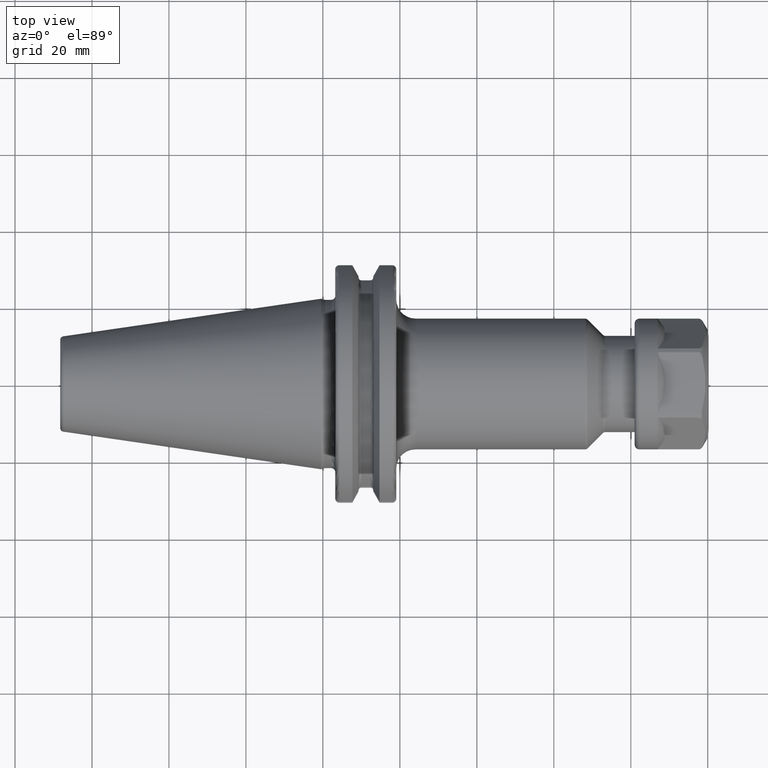
[diagram: clean part render]
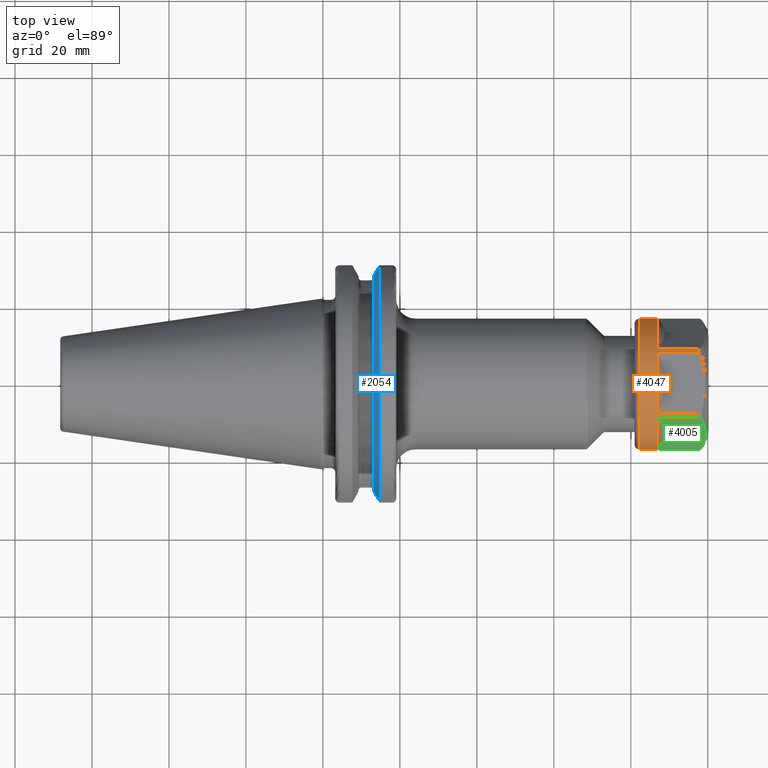
[diagram: same view with three faces highlighted in distinct colors, each labeled with its STEP entity id]
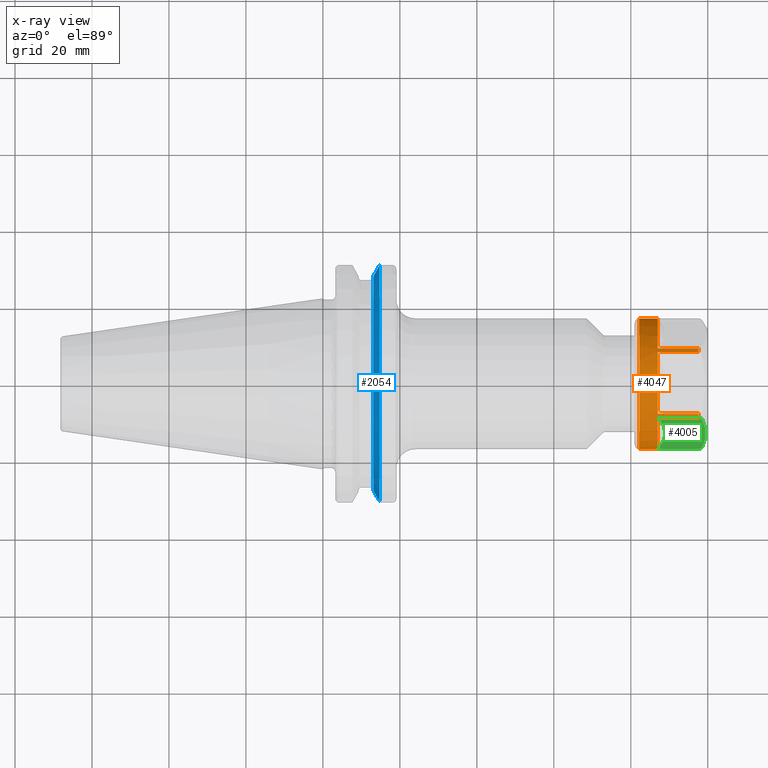
[diagram: x-ray of the same camera — body ghosted, the three highlighted faces saturated]
A machine part, top view with three faces highlighted in distinct colors.
The next image is the same camera in x-ray (body ghosted, the three faces saturated) — at least one of them is partly hidden behind the body in this view.
Their STEP definitions:

[orange] entity #4047 — the highlighted cylindrical surface (partial cylindrical patch) has radius 17 mm, axis along (1, 0, 0).
#3260=DIRECTION('',(-1.E0,0.E0,4.859249806958E-11));
#3261=VECTOR('',#3260,1.529626135594E1);
#3262=CARTESIAN_POINT('',(1.654626135594E1,1.7E1,-1.152775558652E-10));
#3263=LINE('',#3262,#3261);
#3269=DIRECTION('',(-1.E0,0.E0,-4.859253938540E-11));
#3270=VECTOR('',#3269,1.529626135594E1);
#3271=CARTESIAN_POINT('',(1.654626135594E1,-1.7E1,1.152775494066E-10));
#3272=LINE('',#3271,#3270);
#3336=CARTESIAN_POINT('',(1.654626135594E1,-1.699038105677E1,
5.717967697245E-1));
#3338=CARTESIAN_POINT('',(1.654626135594E1,-8.990381056767E0,1.442820323028E1));
#3356=CARTESIAN_POINT('',(1.654626135594E1,-8.E0,1.5E1));
#3358=CARTESIAN_POINT('',(1.654626135594E1,8.E0,1.5E1));
#3376=CARTESIAN_POINT('',(1.654626135594E1,8.990381056767E0,1.442820323028E1));
#3388=CARTESIAN_POINT('',(1.654626135594E1,1.699038105677E1,5.717967697245E-1));
#3530=DIRECTION('',(9.999999992374E-1,-3.427788888926E-5,1.871268806668E-5));
#3531=VECTOR('',#3530,1.053590077871E1);
#3532=CARTESIAN_POINT('',(6.010360585267E0,-8.990019908330E0,1.442800607525E1));
#3533=LINE('',#3532,#3531);
#3534=DIRECTION('',(-1.E0,0.E0,0.E0));
#3535=VECTOR('',#3534,1.053616719791E1);
#3536=CARTESIAN_POINT('',(1.654626135594E1,-1.699038105677E1,
5.717967697245E-1));
#3537=LINE('',#3536,#3535);
#3538=CARTESIAN_POINT('',(6.010022197914E0,7.337104015724E-4,
-4.120040762721E-4));
#3539=DIRECTION('',(-1.E0,0.E0,0.E0));
#3540=DIRECTION('',(0.E0,-9.994334137081E-1,3.365786035761E-2));
#3541=AXIS2_PLACEMENT_3D('',#3538,#3539,#3540);
#3543=CARTESIAN_POINT('',(1.654626135594E1,0.E0,0.E0));
#3544=DIRECTION('',(-1.E0,0.E0,0.E0));
#3545=DIRECTION('',(0.E0,4.705882352941E-1,8.823529411765E-1));
#3546=AXIS2_PLACEMENT_3D('',#3543,#3544,#3545);
#3548=CARTESIAN_POINT('',(1.654626135594E1,0.E0,0.E0));
#3549=DIRECTION('',(-1.E0,0.E0,0.E0));
#3550=DIRECTION('',(0.E0,-5.288459445157E-1,8.487178370750E-1));
#3551=AXIS2_PLACEMENT_3D('',#3548,#3549,#3550);
#3553=CARTESIAN_POINT('',(1.654626135594E1,0.E0,0.E0));
#3554=DIRECTION('',(-1.E0,0.E0,0.E0));
#3555=DIRECTION('',(0.E0,-1.E0,0.E0));
#3556=AXIS2_PLACEMENT_3D('',#3553,#3554,#3555);
#3558=CARTESIAN_POINT('',(1.25E0,0.E0,0.E0));
#3559=DIRECTION('',(-1.E0,0.E0,0.E0));
#3560=DIRECTION('',(0.E0,-1.E0,0.E0));
#3561=AXIS2_PLACEMENT_3D('',#3558,#3559,#3560);
#3563=CARTESIAN_POINT('',(1.654626135594E1,0.E0,0.E0));
#3564=DIRECTION('',(-1.E0,0.E0,0.E0));
#3565=DIRECTION('',(0.E0,9.994341798098E-1,3.363510410144E-2));
#3566=AXIS2_PLACEMENT_3D('',#3563,#3564,#3565);
#3568=CARTESIAN_POINT('',(6.009993566245E0,2.034304302246E-4,
1.276242097576E-4));
#3569=DIRECTION('',(-1.E0,0.E0,0.E0));
#3570=DIRECTION('',(0.E0,5.288406942959E-1,8.487211085255E-1));
#3571=AXIS2_PLACEMENT_3D('',#3568,#3569,#3570);
#3591=DIRECTION('',(9.999999998846E-1,-1.315636510517E-5,-7.598885784195E-6));
#3592=VECTOR('',#3591,1.053639725432E1);
#3593=CARTESIAN_POINT('',(6.009864102845E0,1.699051967746E1,5.718768346038E-1));
#3594=LINE('',#3593,#3592);
#3595=DIRECTION('',(-1.E0,0.E0,0.E0));
#3596=VECTOR('',#3595,1.053628552473E1);
#3597=CARTESIAN_POINT('',(1.654626135594E1,8.990381056767E0,1.442820323028E1));
#3598=LINE('',#3597,#3596);
#3617=DIRECTION('',(1.E0,5.660973854209E-8,-2.603250325831E-7));
#3618=VECTOR('',#3617,1.053619155997E1);
#3619=CARTESIAN_POINT('',(6.010069795972E0,7.999999403549E0,1.500000274283E1));
#3620=LINE('',#3619,#3618);
#3621=DIRECTION('',(-1.E0,0.E0,0.E0));
#3622=VECTOR('',#3621,1.053618977066E1);
#3623=CARTESIAN_POINT('',(1.654626135594E1,-8.E0,1.5E1));
#3624=LINE('',#3623,#3622);
#3625=CARTESIAN_POINT('',(6.010015861223E0,-7.568525554981E-7,
-6.073012240115E-4));
#3626=DIRECTION('',(-1.E0,0.E0,0.E0));
#3627=DIRECTION('',(0.E0,-4.705733677049E-1,8.823608703965E-1));
#3628=AXIS2_PLACEMENT_3D('',#3625,#3626,#3627);
#3658=CARTESIAN_POINT('',(1.25E0,1.7E1,0.E0));
#3659=CARTESIAN_POINT('',(1.25E0,-1.7E1,0.E0));
#3660=VERTEX_POINT('',#3658);
#3661=VERTEX_POINT('',#3659);
#3666=CARTESIAN_POINT('',(1.654626135594E1,1.7E1,-1.152775558652E-10));
#3667=VERTEX_POINT('',#3666);
#3668=CARTESIAN_POINT('',(1.654626135594E1,-1.7E1,1.152775494066E-10));
#3669=VERTEX_POINT('',#3668);
#3682=VERTEX_POINT('',#3336);
#3683=VERTEX_POINT('',#3338);
#3684=VERTEX_POINT('',#3356);
#3685=VERTEX_POINT('',#3358);
#3686=VERTEX_POINT('',#3376);
#3687=VERTEX_POINT('',#3388);
#3694=CARTESIAN_POINT('',(6.010022197914E0,-1.699045297670E1,
5.717991917679E-1));
#3695=CARTESIAN_POINT('',(6.010022197914E0,-8.990424116186E0,1.442827233047E1));
#3696=VERTEX_POINT('',#3694);
#3697=VERTEX_POINT('',#3695);
#3710=CARTESIAN_POINT('',(6.009993566245E0,8.990371677756E0,1.442818817817E1));
#3711=CARTESIAN_POINT('',(6.009993566245E0,1.699035504402E1,5.717958944728E-1));
#3712=VERTEX_POINT('',#3710);
#3713=VERTEX_POINT('',#3711);
#3714=CARTESIAN_POINT('',(6.010015861223E0,-8.000026222655E0,1.500004916947E1));
#3715=CARTESIAN_POINT('',(6.010015861223E0,8.000025887465E0,1.500004854096E1));
#3716=VERTEX_POINT('',#3714);
#3717=VERTEX_POINT('',#3715);
#4017=CARTESIAN_POINT('',(-9.5E-1,0.E0,0.E0));
#4018=DIRECTION('',(1.E0,0.E0,0.E0));
#4019=DIRECTION('',(0.E0,-1.E0,0.E0));
#4020=AXIS2_PLACEMENT_3D('',#4017,#4018,#4019);
#4021=CYLINDRICAL_SURFACE('',#4020,1.7E1);
#4023=ORIENTED_EDGE('',*,*,#4022,.F.);
#4025=ORIENTED_EDGE('',*,*,#4024,.F.);
#4026=ORIENTED_EDGE('',*,*,#3891,.F.);
#4028=ORIENTED_EDGE('',*,*,#4027,.F.);
#4030=ORIENTED_EDGE('',*,*,#4029,.F.);
#4032=ORIENTED_EDGE('',*,*,#4031,.F.);
#4033=ORIENTED_EDGE('',*,*,#3875,.F.);
#4034=ORIENTED_EDGE('',*,*,#3996,.F.);
#4035=ORIENTED_EDGE('',*,*,#4011,.F.);
#4036=ORIENTED_EDGE('',*,*,#4001,.F.);
#4037=ORIENTED_EDGE('',*,*,#3861,.F.);
#4038=ORIENTED_EDGE('',*,*,#3816,.T.);
#4040=ORIENTED_EDGE('',*,*,#4039,.T.);
#4041=ORIENTED_EDGE('',*,*,#3812,.F.);
#4042=ORIENTED_EDGE('',*,*,#3905,.F.);
#4044=ORIENTED_EDGE('',*,*,#4043,.F.);
#4045=EDGE_LOOP('',(#4023,#4025,#4026,#4028,#4030,#4032,#4033,#4034,#4035,#4036,
#4037,#4038,#4040,#4041,#4042,#4044));
#4046=FACE_OUTER_BOUND('',#4045,.F.);
#4047=ADVANCED_FACE('',(#4046),#4021,.T.);
#3542=CIRCLE('',#3541,1.700081911817E1);
#3547=CIRCLE('',#3546,1.7E1);
#3552=CIRCLE('',#3551,1.7E1);
#3557=CIRCLE('',#3556,1.7E1);
#3562=CIRCLE('',#3561,1.7E1);
#3567=CIRCLE('',#3566,1.7E1);
#3572=CIRCLE('',#3571,1.699976636499E1);
#3629=CIRCLE('',#3628,1.700059122517E1);
#3812=EDGE_CURVE('',#3667,#3660,#3263,.T.);
#3816=EDGE_CURVE('',#3669,#3661,#3272,.T.);
#3861=EDGE_CURVE('',#3669,#3682,#3557,.T.);
#3875=EDGE_CURVE('',#3683,#3684,#3552,.T.);
#3891=EDGE_CURVE('',#3685,#3686,#3547,.T.);
#3905=EDGE_CURVE('',#3687,#3667,#3567,.T.);
#3996=EDGE_CURVE('',#3697,#3683,#3533,.T.);
#4001=EDGE_CURVE('',#3682,#3696,#3537,.T.);
#4011=EDGE_CURVE('',#3696,#3697,#3542,.T.);
#4022=EDGE_CURVE('',#3712,#3713,#3572,.T.);
#4024=EDGE_CURVE('',#3686,#3712,#3598,.T.);
#4027=EDGE_CURVE('',#3717,#3685,#3620,.T.);
#4029=EDGE_CURVE('',#3716,#3717,#3629,.T.);
#4031=EDGE_CURVE('',#3684,#3716,#3624,.T.);
#4039=EDGE_CURVE('',#3661,#3660,#3562,.T.);
#4043=EDGE_CURVE('',#3713,#3687,#3594,.T.);

[blue] entity #2054 — the highlighted conical surface has half-angle 60 deg.
#393=CARTESIAN_POINT('',(1.470405352042E1,3.071231684927E1,8.1E0));
#394=CARTESIAN_POINT('',(1.451824513517E1,3.037948258059E1,8.1E0));
#395=CARTESIAN_POINT('',(1.415074718503E1,2.972048825911E1,8.1E0));
#396=CARTESIAN_POINT('',(1.361195207986E1,2.875212438619E1,8.1E0));
#397=CARTESIAN_POINT('',(1.326094199325E1,2.811971443922E1,8.1E0));
#398=CARTESIAN_POINT('',(1.30875E1,2.780681820245E1,8.1E0));
#400=CARTESIAN_POINT('',(1.30875E1,-2.780681820245E1,8.1E0));
#401=CARTESIAN_POINT('',(1.326086175289E1,-2.811956968242E1,8.1E0));
#402=CARTESIAN_POINT('',(1.361176448515E1,-2.875178670793E1,8.1E0));
#403=CARTESIAN_POINT('',(1.415055493375E1,-2.972014324708E1,8.1E0));
#404=CARTESIAN_POINT('',(1.451816260441E1,-3.037933474515E1,8.1E0));
#405=CARTESIAN_POINT('',(1.470405352042E1,-3.071231684927E1,8.1E0));
#407=CARTESIAN_POINT('',(1.30875E1,0.E0,0.E0));
#408=DIRECTION('',(1.E0,0.E0,0.E0));
#409=DIRECTION('',(0.E0,9.600957415706E-1,2.796715341576E-1));
#410=AXIS2_PLACEMENT_3D('',#407,#408,#409);
#438=CARTESIAN_POINT('',(1.470405352042E1,0.E0,0.E0));
#439=DIRECTION('',(1.E0,0.E0,0.E0));
#440=DIRECTION('',(0.E0,9.669363825036E-1,2.550177095632E-1));
#441=AXIS2_PLACEMENT_3D('',#438,#439,#440);
#1368=CARTESIAN_POINT('',(1.30875E1,2.780681820245E1,8.1E0));
#1369=VERTEX_POINT('',#1368);
#1378=CARTESIAN_POINT('',(1.30875E1,-2.780681820245E1,8.1E0));
#1379=VERTEX_POINT('',#1378);
#1388=VERTEX_POINT('',#393);
#1389=VERTEX_POINT('',#405);
#2042=CARTESIAN_POINT('',(1.389577676021E1,0.E0,0.E0));
#2043=DIRECTION('',(1.E0,0.E0,0.E0));
#2044=DIRECTION('',(0.E0,-1.E0,0.E0));
#2045=AXIS2_PLACEMENT_3D('',#2042,#2043,#2044);
#2046=CONICAL_SURFACE('',#2045,3.036252358474E1,6.E1);
#2047=ORIENTED_EDGE('',*,*,#1900,.F.);
#2049=ORIENTED_EDGE('',*,*,#2048,.T.);
#2050=ORIENTED_EDGE('',*,*,#1941,.F.);
#2051=ORIENTED_EDGE('',*,*,#2005,.F.);
#2052=EDGE_LOOP('',(#2047,#2049,#2050,#2051));
#2053=FACE_OUTER_BOUND('',#2052,.F.);
#2054=ADVANCED_FACE('',(#2053),#2046,.T.);
#399=B_SPLINE_CURVE_WITH_KNOTS('',3,(#393,#394,#395,#396,#397,#398),
.UNSPECIFIED.,.F.,.F.,(4,1,1,4),(0.E0,3.333333333333E-1,6.666666666667E-1,1.E0),
.UNSPECIFIED.);
#406=B_SPLINE_CURVE_WITH_KNOTS('',3,(#400,#401,#402,#403,#404,#405),
.UNSPECIFIED.,.F.,.F.,(4,1,1,4),(0.E0,3.333333333333E-1,6.666666666667E-1,1.E0),
.UNSPECIFIED.);
#411=CIRCLE('',#410,2.896254716948E1);
#442=CIRCLE('',#441,3.17625E1);
#1900=EDGE_CURVE('',#1388,#1369,#399,.T.);
#1941=EDGE_CURVE('',#1379,#1389,#406,.T.);
#2005=EDGE_CURVE('',#1369,#1379,#411,.T.);
#2048=EDGE_CURVE('',#1388,#1389,#442,.T.);

[green] entity #4005 — the highlighted planar face has unit normal (0, 0.866, -0.5).
#3328=CARTESIAN_POINT('',(1.762879311067E1,-1.627445722062E1,1.811813228277E0));
#3329=CARTESIAN_POINT('',(1.760135930288E1,-1.633368900493E1,1.709220768439E0));
#3330=CARTESIAN_POINT('',(1.753829156841E1,-1.645016226804E1,1.507483158997E0));
#3331=CARTESIAN_POINT('',(1.740404374214E1,-1.662460489838E1,1.205339660241E0));
#3332=CARTESIAN_POINT('',(1.723276370862E1,-1.677685693130E1,
9.416314036774E-1));
#3333=CARTESIAN_POINT('',(1.702726259196E1,-1.689631751599E1,
7.347196014845E-1));
#3334=CARTESIAN_POINT('',(1.679442486846E1,-1.697258284358E1,
6.026241792443E-1));
#3335=CARTESIAN_POINT('',(1.663092243804E1,-1.699038105677E1,
5.717967697245E-1));
#3336=CARTESIAN_POINT('',(1.654626135594E1,-1.699038105677E1,
5.717967697245E-1));
#3338=CARTESIAN_POINT('',(1.654626135594E1,-8.990381056767E0,1.442820323028E1));
#3339=CARTESIAN_POINT('',(1.663133375969E1,-8.990381056767E0,1.442820323028E1));
#3340=CARTESIAN_POINT('',(1.679554974256E1,-9.008319998068E0,1.439713207251E1));
#3341=CARTESIAN_POINT('',(1.702967586056E1,-9.085449864247E0,1.426353922550E1));
#3342=CARTESIAN_POINT('',(1.723504960512E1,-9.205598196371E0,1.405543620982E1));
#3343=CARTESIAN_POINT('',(1.740538646210E1,-9.357706797040E0,1.379197638519E1));
#3344=CARTESIAN_POINT('',(1.753869894456E1,-9.531335419002E0,1.349124279031E1));
#3345=CARTESIAN_POINT('',(1.760147975856E1,-9.647333182045E0,1.329032877115E1));
#3346=CARTESIAN_POINT('',(1.762879311067E1,-9.706304892912E0,1.318818677172E1));
#3460=CARTESIAN_POINT('',(1.762879311067E1,-9.706304892912E0,1.318818677172E1));
#3461=CARTESIAN_POINT('',(1.783518476881E1,-1.015192098345E1,1.241635706224E1));
#3462=CARTESIAN_POINT('',(1.817379271881E1,-1.103673598687E1,1.088381252102E1));
#3463=CARTESIAN_POINT('',(1.843326934202E1,-1.233775072113E1,8.630388899882E0));
#3464=CARTESIAN_POINT('',(1.843317407038E1,-1.364378086319E1,6.368278337620E0));
#3465=CARTESIAN_POINT('',(1.817365600931E1,-1.494440287302E1,4.115534935150E0));
#3466=CARTESIAN_POINT('',(1.783512110256E1,-1.582897859061E1,2.583404849145E0));
#3467=CARTESIAN_POINT('',(1.762879311067E1,-1.627445722062E1,1.811813228277E0));
#3512=CARTESIAN_POINT('',(6.010094158031E0,-1.699038105677E1,
5.717967697245E-1));
#3513=CARTESIAN_POINT('',(6.248860555610E0,-1.673667885002E1,1.011221881794E0));
#3514=CARTESIAN_POINT('',(6.673359230126E0,-1.624777384717E1,1.858030186861E0));
#3515=CARTESIAN_POINT('',(7.159540054751E0,-1.557555148035E1,3.022353479931E0));
#3516=CARTESIAN_POINT('',(7.516204356980E0,-1.495849455715E1,4.091127423007E0));
#3517=CARTESIAN_POINT('',(7.761855355127E0,-1.439387284035E1,5.069080920115E0));
#3518=CARTESIAN_POINT('',(7.915629503835E0,-1.387929474987E1,5.960356330146E0));
#3519=CARTESIAN_POINT('',(7.995386678839E0,-1.340806650550E1,6.776547543349E0));
#3520=CARTESIAN_POINT('',(8.017308964701E0,-1.298987968061E1,7.500868550285E0));
#3521=CARTESIAN_POINT('',(7.995278378694E0,-1.257168644043E1,8.225199820986E0));
#3522=CARTESIAN_POINT('',(7.915368412529E0,-1.210033937944E1,9.041599374128E0));
#3523=CARTESIAN_POINT('',(7.761438829086E0,-1.158574052652E1,9.932901419567E0));
#3524=CARTESIAN_POINT('',(7.515627757615E0,-1.102116525029E1,1.091080924048E1));
#3525=CARTESIAN_POINT('',(7.158946891423E0,-1.040420428591E1,1.197928725927E1));
#3526=CARTESIAN_POINT('',(6.672584733473E0,-9.732360887253E0,1.314343827394E1));
#3527=CARTESIAN_POINT('',(6.248870550518E0,-9.243433178603E0,1.398908141583E1));
#3528=CARTESIAN_POINT('',(6.010360585267E0,-8.990019908330E0,1.442800607525E1));
#3530=DIRECTION('',(9.999999992374E-1,-3.427788888926E-5,1.871268806668E-5));
#3531=VECTOR('',#3530,1.053590077871E1);
#3532=CARTESIAN_POINT('',(6.010360585267E0,-8.990019908330E0,1.442800607525E1));
#3533=LINE('',#3532,#3531);
#3534=DIRECTION('',(-1.E0,0.E0,0.E0));
#3535=VECTOR('',#3534,1.053616719791E1);
#3536=CARTESIAN_POINT('',(1.654626135594E1,-1.699038105677E1,
5.717967697245E-1));
#3537=LINE('',#3536,#3535);
#3670=VERTEX_POINT('',#3460);
#3671=VERTEX_POINT('',#3467);
#3682=VERTEX_POINT('',#3336);
#3683=VERTEX_POINT('',#3338);
#3694=CARTESIAN_POINT('',(6.010022197914E0,-1.699045297670E1,
5.717991917679E-1));
#3695=CARTESIAN_POINT('',(6.010022197914E0,-8.990424116186E0,1.442827233047E1));
#3696=VERTEX_POINT('',#3694);
#3697=VERTEX_POINT('',#3695);
#3989=CARTESIAN_POINT('',(1.9E1,-1.732050807569E1,0.E0));
#3990=DIRECTION('',(0.E0,8.660254037844E-1,-5.E-1));
#3991=DIRECTION('',(0.E0,5.E-1,8.660254037844E-1));
#3992=AXIS2_PLACEMENT_3D('',#3989,#3990,#3991);
#3993=PLANE('',#3992);
#3995=ORIENTED_EDGE('',*,*,#3994,.T.);
#3997=ORIENTED_EDGE('',*,*,#3996,.T.);
#3998=ORIENTED_EDGE('',*,*,#3873,.T.);
#3999=ORIENTED_EDGE('',*,*,#3973,.T.);
#4000=ORIENTED_EDGE('',*,*,#3863,.T.);
#4002=ORIENTED_EDGE('',*,*,#4001,.T.);
#4003=EDGE_LOOP('',(#3995,#3997,#3998,#3999,#4000,#4002));
#4004=FACE_OUTER_BOUND('',#4003,.F.);
#4005=ADVANCED_FACE('',(#4004),#3993,.F.);
#3337=B_SPLINE_CURVE_WITH_KNOTS('',3,(#3328,#3329,#3330,#3331,#3332,#3333,#3334,
#3335,#3336),.UNSPECIFIED.,.F.,.F.,(4,1,1,1,1,1,4),(0.E0,1.666666666667E-1,
3.333333333333E-1,5.E-1,6.666666666667E-1,8.333333333333E-1,1.E0),
.UNSPECIFIED.);
#3347=B_SPLINE_CURVE_WITH_KNOTS('',3,(#3338,#3339,#3340,#3341,#3342,#3343,#3344,
#3345,#3346),.UNSPECIFIED.,.F.,.F.,(4,1,1,1,1,1,4),(0.E0,1.666666666667E-1,
3.333333333333E-1,5.E-1,6.666666666667E-1,8.333333333333E-1,1.E0),
.UNSPECIFIED.);
#3468=B_SPLINE_CURVE_WITH_KNOTS('',3,(#3460,#3461,#3462,#3463,#3464,#3465,#3466,
#3467),.UNSPECIFIED.,.F.,.F.,(4,1,1,1,1,4),(0.E0,2.E-1,4.E-1,6.E-1,8.E-1,1.E0),
.UNSPECIFIED.);
#3529=B_SPLINE_CURVE_WITH_KNOTS('',3,(#3512,#3513,#3514,#3515,#3516,#3517,#3518,
#3519,#3520,#3521,#3522,#3523,#3524,#3525,#3526,#3527,#3528),.UNSPECIFIED.,.F.,
.F.,(4,1,1,1,1,1,1,1,1,1,1,1,1,1,4),(0.E0,7.142857142857E-2,1.428571428571E-1,
2.142857142857E-1,2.857142857143E-1,3.571428571429E-1,4.285714285714E-1,5.E-1,
5.714285714286E-1,6.428571428571E-1,7.142857142857E-1,7.857142857143E-1,
8.571428571429E-1,9.285714285714E-1,1.E0),.UNSPECIFIED.);
#3863=EDGE_CURVE('',#3671,#3682,#3337,.T.);
#3873=EDGE_CURVE('',#3683,#3670,#3347,.T.);
#3973=EDGE_CURVE('',#3670,#3671,#3468,.T.);
#3994=EDGE_CURVE('',#3696,#3697,#3529,.T.);
#3996=EDGE_CURVE('',#3697,#3683,#3533,.T.);
#4001=EDGE_CURVE('',#3682,#3696,#3537,.T.);